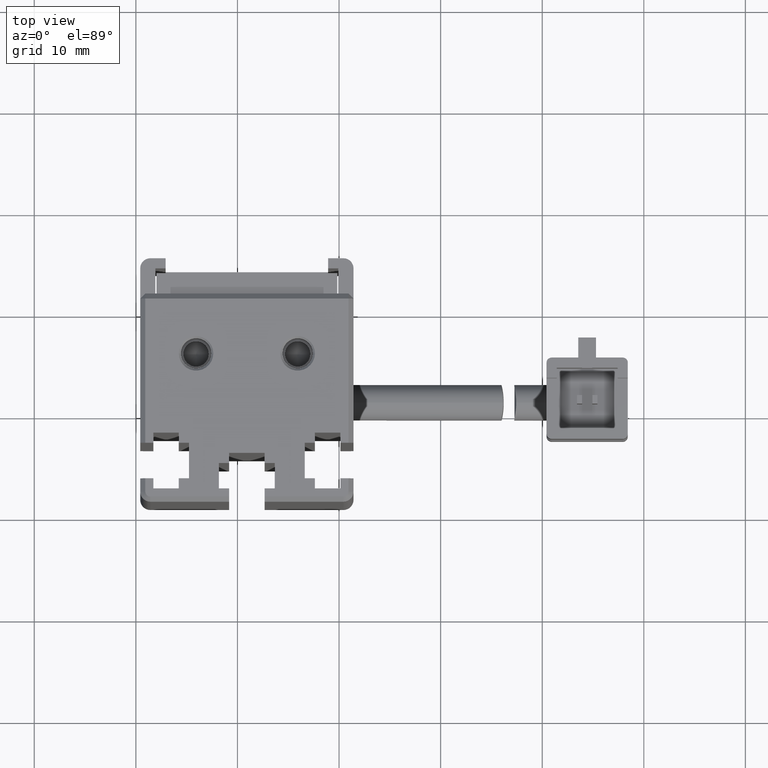
[diagram: clean part render]
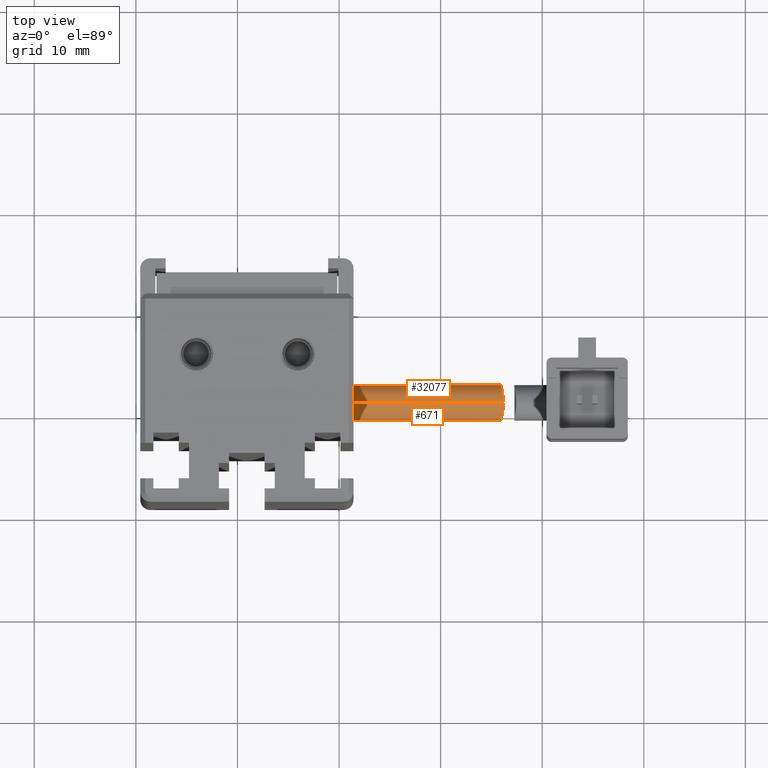
[diagram: same view with one multi-face feature highlighted, each face labeled with its STEP entity id]
A machine part, top view. The highlighted faces form ONE feature: a constant-radius fillet chain: 2 tangent blend faces with common blend radius 1.75 mm. The faces share edges in the B-rep.
Their STEP definitions:
[1] entity #32077 (Cylinder):
#144 = DIRECTION ( 'NONE',  ( 0.0000000000000000000, 0.0000000000000000000, 1.000000000000000000 ) ) ;
#1161 = CARTESIAN_POINT ( 'NONE',  ( 66.19668055208005300, 21.95177912622206800, -137.1536289975071800 ) ) ;
#1220 = DIRECTION ( 'NONE',  ( -1.000000000000000000, -3.304235192336770000E-015, -8.579261317967046800E-031 ) ) ;
#1469 = VERTEX_POINT ( 'NONE', #14077 ) ;
#3065 = CARTESIAN_POINT ( 'NONE',  ( 51.42537974683536100, 21.49073232304850800, -135.4500000000000200 ) ) ;
#4444 = CARTESIAN_POINT ( 'NONE',  ( 66.16064130294124400, 22.37141064514802100, -136.9665380968415300 ) ) ;
#5946 = DIRECTION ( 'NONE',  ( 1.000000000000000000, 3.304235192336770000E-015, 8.579261317967046800E-031 ) ) ;
#6692 = CARTESIAN_POINT ( 'NONE',  ( 66.20621967933266200, 21.49073232304855800, -137.1999999999999900 ) ) ;
#7027 = DIRECTION ( 'NONE',  ( -1.000000000000000000, -3.304235192336770000E-015, -8.579261317967046800E-031 ) ) ;
#7298 = CARTESIAN_POINT ( 'NONE',  ( 66.16909918599564800, 21.60680859003607800, -133.6999999999999600 ) ) ;
#7545 = CARTESIAN_POINT ( 'NONE',  ( 66.20621967933264800, 21.72282869244823500, -137.1999999999999600 ) ) ;
#7680 = CARTESIAN_POINT ( 'NONE',  ( 65.98134991565429200, 23.24078982580402600, -135.5637194744111600 ) ) ;
#7927 = FACE_OUTER_BOUND ( 'NONE', #28015, .T. ) ;
#8015 = CARTESIAN_POINT ( 'NONE',  ( 51.42537974683536100, 21.49073232304850800, -133.7000000000000200 ) ) ;
#8885 = EDGE_CURVE ( 'NONE', #10264, #1469, #23369, .T. ) ;
#9031 = DIRECTION ( 'NONE',  ( -1.000000000000000000, -3.304235192336770000E-015, -8.579261317967046800E-031 ) ) ;
#9688 = AXIS2_PLACEMENT_3D ( 'NONE', #3065, #5946, #144 ) ;
#9996 = ORIENTED_EDGE ( 'NONE', *, *, #8885, .T. ) ;
#10264 = VERTEX_POINT ( 'NONE', #6692 ) ;
#10404 = CARTESIAN_POINT ( 'NONE',  ( 65.96799919059766600, 23.24061665153340400, -135.2199166147517800 ) ) ;
#10486 = VECTOR ( 'NONE', #9031, 1000.000000000000000 ) ;
#13030 = CARTESIAN_POINT ( 'NONE',  ( 66.10664507071447800, 22.36783389789094300, -133.9313779437375400 ) ) ;
#13163 = CARTESIAN_POINT ( 'NONE',  ( 65.98855349268929200, 23.22932324687323200, -135.6799364845565500 ) ) ;
#13896 = CARTESIAN_POINT ( 'NONE',  ( 66.16909918599567700, 21.49073232304855800, -133.7000000000000200 ) ) ;
#14077 = CARTESIAN_POINT ( 'NONE',  ( 51.42537974683536100, 21.49073232304853300, -137.2000000000000200 ) ) ;
#14385 = EDGE_CURVE ( 'NONE', #1469, #28205, #20872, .T. ) ;
#14876 = B_SPLINE_CURVE_WITH_KNOTS ( 'NONE', 3,
 ( #16441, #7298, #37520, #25106, #34015, #16059, #13030, #37121, #31302, #22491, #22220, #22617, #10404, #7680, #13163, #28391, #37001, #16559, #22357, #22104, #31424, #4444, #19057, #1161, #7545, #19325 ),
 .UNSPECIFIED., .F., .F.,
 ( 4, 2, 2, 2, 2, 2, 2, 2, 2, 2, 2, 2, 4 ),
 ( 0.005490571999674979600, 0.005833718808239048500, 0.006176865616803117400, 0.006520012425367186300, 0.006863159233931255200, 0.007549452851059330500, 0.008235746468187404200, 0.008578893276751483500, 0.008922040085315562800, 0.009608333702443790800, 0.009951480511007904800, 0.01029462731957201900, 0.01098092093670028300 ),
 .UNSPECIFIED. ) ;
#15134 = EDGE_CURVE ( 'NONE', #24097, #10264, #14876, .T. ) ;
#16059 = CARTESIAN_POINT ( 'NONE',  ( 66.12003836585687100, 22.26761315901731600, -133.8777216974355900 ) ) ;
#16441 = CARTESIAN_POINT ( 'NONE',  ( 66.16909918599567700, 21.49073232304855800, -133.7000000000000200 ) ) ;
#16559 = CARTESIAN_POINT ( 'NONE',  ( 66.05492445293647600, 23.01977546981315800, -136.3316429091015600 ) ) ;
#19057 = CARTESIAN_POINT ( 'NONE',  ( 66.17113496622533800, 22.26883414955935700, -137.0216747521505200 ) ) ;
#19325 = CARTESIAN_POINT ( 'NONE',  ( 66.20621967933266200, 21.49073232304855800, -137.1999999999999900 ) ) ;
#20872 = CIRCLE ( 'NONE', #9688, 1.750000000000001600 ) ;
#21312 = ORIENTED_EDGE ( 'NONE', *, *, #15134, .T. ) ;
#22104 = CARTESIAN_POINT ( 'NONE',  ( 66.12463420223004100, 22.64847476324764100, -136.7673024940898500 ) ) ;
#22220 = CARTESIAN_POINT ( 'NONE',  ( 65.99693793915955100, 23.01894157653051200, -134.5672986979646500 ) ) ;
#22357 = CARTESIAN_POINT ( 'NONE',  ( 66.08400798320374700, 22.89150646391434300, -136.5237529889950000 ) ) ;
#22491 = CARTESIAN_POINT ( 'NONE',  ( 66.02159805663031000, 22.88828370669178000, -134.3725020553220900 ) ) ;
#22617 = CARTESIAN_POINT ( 'NONE',  ( 65.97024437261939100, 23.19420936625597200, -134.9887505292055900 ) ) ;
#23369 = LINE ( 'NONE', #28065, #32268 ) ;
#24097 = VERTEX_POINT ( 'NONE', #13896 ) ;
#25106 = CARTESIAN_POINT ( 'NONE',  ( 66.15272929082431100, 21.94491196028725700, -133.7561066842592900 ) ) ;
#27249 = CARTESIAN_POINT ( 'NONE',  ( 71.42537974683536100, 21.49073232304857600, -133.7000000000000200 ) ) ;
#27991 = DIRECTION ( 'NONE',  ( 0.0000000000000000000, 0.0000000000000000000, 1.000000000000000000 ) ) ;
#28015 = EDGE_LOOP ( 'NONE', ( #21312, #9996, #28282, #36708 ) ) ;
#28065 = CARTESIAN_POINT ( 'NONE',  ( 71.42537974683536100, 21.49073232304857600, -137.2000000000000200 ) ) ;
#28205 = VERTEX_POINT ( 'NONE', #8015 ) ;
#28282 = ORIENTED_EDGE ( 'NONE', *, *, #14385, .T. ) ;
#28391 = CARTESIAN_POINT ( 'NONE',  ( 66.00678294115667200, 23.18463344848184700, -135.9041675512315200 ) ) ;
#30761 = CARTESIAN_POINT ( 'NONE',  ( 71.42537974683536100, 21.49073232304857600, -135.4500000000000200 ) ) ;
#31302 = CARTESIAN_POINT ( 'NONE',  ( 66.06343873949747100, 22.64709544356476600, -134.1315777397997200 ) ) ;
#31424 = CARTESIAN_POINT ( 'NONE',  ( 66.13743220877901800, 22.56061969415858900, -136.8395406144934700 ) ) ;
#32077 = ADVANCED_FACE ( 'NONE', ( #7927 ), #33705, .T. ) ;
#32268 = VECTOR ( 'NONE', #1220, 1000.000000000000000 ) ;
#33705 = CYLINDRICAL_SURFACE ( 'NONE', #37841, 1.750000000000001600 ) ;
#34015 = CARTESIAN_POINT ( 'NONE',  ( 66.14312513808744100, 22.05618387698943300, -133.7899194494976600 ) ) ;
#34259 = EDGE_CURVE ( 'NONE', #24097, #28205, #34841, .T. ) ;
#34841 = LINE ( 'NONE', #27249, #10486 ) ;
#36708 = ORIENTED_EDGE ( 'NONE', *, *, #34259, .F. ) ;
#37001 = CARTESIAN_POINT ( 'NONE',  ( 66.01781632386865800, 23.15157741340437500, -136.0132809039904500 ) ) ;
#37121 = CARTESIAN_POINT ( 'NONE',  ( 66.07835221810198300, 22.55760743916209400, -134.0581316121933400 ) ) ;
#37520 = CARTESIAN_POINT ( 'NONE',  ( 66.16564187166542900, 21.72081579437508100, -133.7114329739076800 ) ) ;
#37841 = AXIS2_PLACEMENT_3D ( 'NONE', #30761, #7027, #27991 ) ;
[2] entity #671 (Cylinder):
#671 = ADVANCED_FACE ( 'NONE', ( #14686 ), #29252, .T. ) ;
#1104 = CARTESIAN_POINT ( 'NONE',  ( 71.42537974683536100, 21.49073232304857600, -135.4500000000000200 ) ) ;
#1220 = DIRECTION ( 'NONE',  ( -1.000000000000000000, -3.304235192336770000E-015, -8.579261317967046800E-031 ) ) ;
#1469 = VERTEX_POINT ( 'NONE', #14077 ) ;
#2125 = CARTESIAN_POINT ( 'NONE',  ( 66.10631114892369500, 20.61124924129202500, -133.9327861123732100 ) ) ;
#2243 = CARTESIAN_POINT ( 'NONE',  ( 66.16091813003936300, 20.61255936552064200, -136.9680184145168500 ) ) ;
#2365 = ORIENTED_EDGE ( 'NONE', *, *, #37881, .T. ) ;
#2377 = CARTESIAN_POINT ( 'NONE',  ( 65.99681660540062500, 19.96193764474621100, -134.5678160555280000 ) ) ;
#2514 = CARTESIAN_POINT ( 'NONE',  ( 66.20621967933266200, 21.49073232304855800, -137.1999999999999900 ) ) ;
#5276 = CARTESIAN_POINT ( 'NONE',  ( 66.00588664361791300, 19.78737048454823700, -135.9112699601981000 ) ) ;
#5407 = CARTESIAN_POINT ( 'NONE',  ( 65.97065476178855200, 19.75195885195751100, -135.2212418624716300 ) ) ;
#5656 = CARTESIAN_POINT ( 'NONE',  ( 65.97674975456151000, 19.82986165832780000, -134.8867513380907900 ) ) ;
#6692 = CARTESIAN_POINT ( 'NONE',  ( 66.20621967933266200, 21.49073232304855800, -137.1999999999999900 ) ) ;
#8015 = CARTESIAN_POINT ( 'NONE',  ( 51.42537974683536100, 21.49073232304850800, -133.7000000000000200 ) ) ;
#8240 = CARTESIAN_POINT ( 'NONE',  ( 66.17117312302134700, 20.71299618687269700, -137.0218756747875700 ) ) ;
#8885 = EDGE_CURVE ( 'NONE', #10264, #1469, #23369, .T. ) ;
#9031 = DIRECTION ( 'NONE',  ( -1.000000000000000000, -3.304235192336770000E-015, -8.579261317967046800E-031 ) ) ;
#10264 = VERTEX_POINT ( 'NONE', #6692 ) ;
#10486 = VECTOR ( 'NONE', #9031, 1000.000000000000000 ) ;
#11241 = CARTESIAN_POINT ( 'NONE',  ( 66.02121001940464900, 20.09098345961682200, -134.3748734586274900 ) ) ;
#11611 = CARTESIAN_POINT ( 'NONE',  ( 66.20621967933267600, 21.37467942352718700, -137.1999999999999900 ) ) ;
#13896 = CARTESIAN_POINT ( 'NONE',  ( 66.16909918599567700, 21.49073232304855800, -133.7000000000000200 ) ) ;
#14027 = DIRECTION ( 'NONE',  ( 0.0000000000000000000, 0.0000000000000000000, 1.000000000000000000 ) ) ;
#14077 = CARTESIAN_POINT ( 'NONE',  ( 51.42537974683536100, 21.49073232304853300, -137.2000000000000200 ) ) ;
#14118 = CARTESIAN_POINT ( 'NONE',  ( 66.16909918599569100, 21.25857035714853900, -133.7000000000000500 ) ) ;
#14616 = CARTESIAN_POINT ( 'NONE',  ( 66.13767043200717000, 20.42254390752244200, -136.8408778375836900 ) ) ;
#14686 = FACE_OUTER_BOUND ( 'NONE', #22902, .T. ) ;
#17141 = CARTESIAN_POINT ( 'NONE',  ( 66.08432375002451000, 20.09174899000161200, -136.5256856806185200 ) ) ;
#17274 = CARTESIAN_POINT ( 'NONE',  ( 65.97280863591524300, 19.79670929018426400, -134.9961834804894400 ) ) ;
#17514 = CARTESIAN_POINT ( 'NONE',  ( 66.19496276555766200, 21.03633168118914700, -137.1438409074873400 ) ) ;
#17658 = CARTESIAN_POINT ( 'NONE',  ( 66.07810076657452200, 20.42231531355382800, -134.0593477912411200 ) ) ;
#20026 = CARTESIAN_POINT ( 'NONE',  ( 66.05492220013285000, 19.96182696463409200, -136.3312831179887000 ) ) ;
#20287 = CARTESIAN_POINT ( 'NONE',  ( 65.98599951797790200, 19.74101606756723400, -135.6810619186153100 ) ) ;
#20717 = AXIS2_PLACEMENT_3D ( 'NONE', #1104, #22050, #32377 ) ;
#22050 = DIRECTION ( 'NONE',  ( -1.000000000000000000, -3.304235192336770000E-015, -8.579261317967046800E-031 ) ) ;
#22473 = B_SPLINE_CURVE_WITH_KNOTS ( 'NONE', 3,
 ( #2514, #11611, #35221, #17514, #29223, #8240, #2243, #14616, #26454, #17141, #20026, #5276, #20287, #29488, #5407, #17274, #5656, #2377, #11241, #23427, #17658, #2125, #23305, #38312, #14118, #26327 ),
 .UNSPECIFIED., .F., .F.,
 ( 4, 2, 2, 2, 2, 2, 2, 2, 2, 2, 2, 2, 4 ),
 ( 2.081668171172168500E-017, 0.0003431607499797082300, 0.0006863214999593956500, 0.001029482249939083300, 0.001372642999918770500, 0.002058964499878157900, 0.002745285999837544900, 0.003088446749817196100, 0.003431607499796847300, 0.004117928999756225600, 0.004461089749735919700, 0.004804250499715612100, 0.005490571999674979600 ),
 .UNSPECIFIED. ) ;
#22902 = EDGE_LOOP ( 'NONE', ( #37480, #2365, #25270, #34054 ) ) ;
#23305 = CARTESIAN_POINT ( 'NONE',  ( 66.11999622660434300, 20.71354430800201000, -133.8778917883745400 ) ) ;
#23369 = LINE ( 'NONE', #28065, #32268 ) ;
#23427 = CARTESIAN_POINT ( 'NONE',  ( 66.06345805648925300, 20.33446100659061200, -134.1313984176798900 ) ) ;
#24097 = VERTEX_POINT ( 'NONE', #13896 ) ;
#25270 = ORIENTED_EDGE ( 'NONE', *, *, #34259, .T. ) ;
#26114 = CARTESIAN_POINT ( 'NONE',  ( 51.42537974683536100, 21.49073232304850800, -135.4500000000000200 ) ) ;
#26327 = CARTESIAN_POINT ( 'NONE',  ( 66.16909918599567700, 21.49073232304855800, -133.7000000000000200 ) ) ;
#26454 = CARTESIAN_POINT ( 'NONE',  ( 66.12460940034066000, 20.33289083467249400, -136.7671338581188000 ) ) ;
#27249 = CARTESIAN_POINT ( 'NONE',  ( 71.42537974683536100, 21.49073232304857600, -133.7000000000000200 ) ) ;
#28065 = CARTESIAN_POINT ( 'NONE',  ( 71.42537974683536100, 21.49073232304857600, -137.2000000000000200 ) ) ;
#28205 = VERTEX_POINT ( 'NONE', #8015 ) ;
#28369 = EDGE_CURVE ( 'NONE', #28205, #1469, #28887, .T. ) ;
#28887 = CIRCLE ( 'NONE', #30786, 1.750000000000001600 ) ;
#29223 = CARTESIAN_POINT ( 'NONE',  ( 66.18822953472890400, 20.92490558211200700, -137.1099719075165000 ) ) ;
#29252 = CYLINDRICAL_SURFACE ( 'NONE', #20717, 1.750000000000001600 ) ;
#29488 = CARTESIAN_POINT ( 'NONE',  ( 65.97252778088122200, 19.74059244864715300, -135.3377076749584100 ) ) ;
#30786 = AXIS2_PLACEMENT_3D ( 'NONE', #26114, #35401, #14027 ) ;
#32268 = VECTOR ( 'NONE', #1220, 1000.000000000000000 ) ;
#32377 = DIRECTION ( 'NONE',  ( 0.0000000000000000000, 0.0000000000000000000, 1.000000000000000000 ) ) ;
#34054 = ORIENTED_EDGE ( 'NONE', *, *, #28369, .T. ) ;
#34259 = EDGE_CURVE ( 'NONE', #24097, #28205, #34841, .T. ) ;
#34841 = LINE ( 'NONE', #27249, #10486 ) ;
#35221 = CARTESIAN_POINT ( 'NONE',  ( 66.20390138008309600, 21.26062417110182400, -137.1885704476976000 ) ) ;
#35401 = DIRECTION ( 'NONE',  ( 1.000000000000000000, 3.304235192336770000E-015, 8.579261317967046800E-031 ) ) ;
#37480 = ORIENTED_EDGE ( 'NONE', *, *, #8885, .F. ) ;
#37881 = EDGE_CURVE ( 'NONE', #10264, #24097, #22473, .T. ) ;
#38312 = CARTESIAN_POINT ( 'NONE',  ( 66.15457117823017100, 21.02994706544156900, -133.7463689643743100 ) ) ;